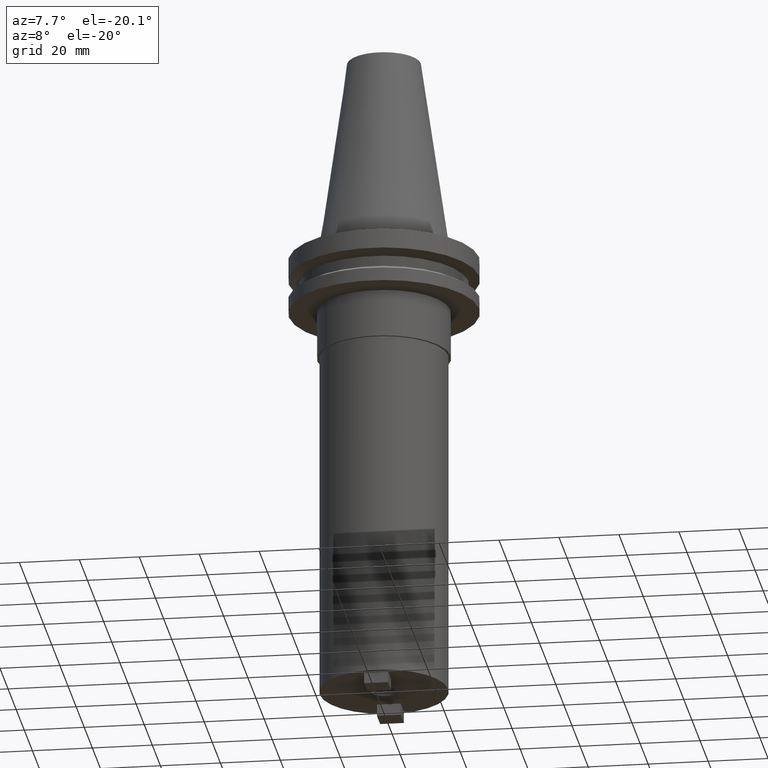
[diagram: clean part render]
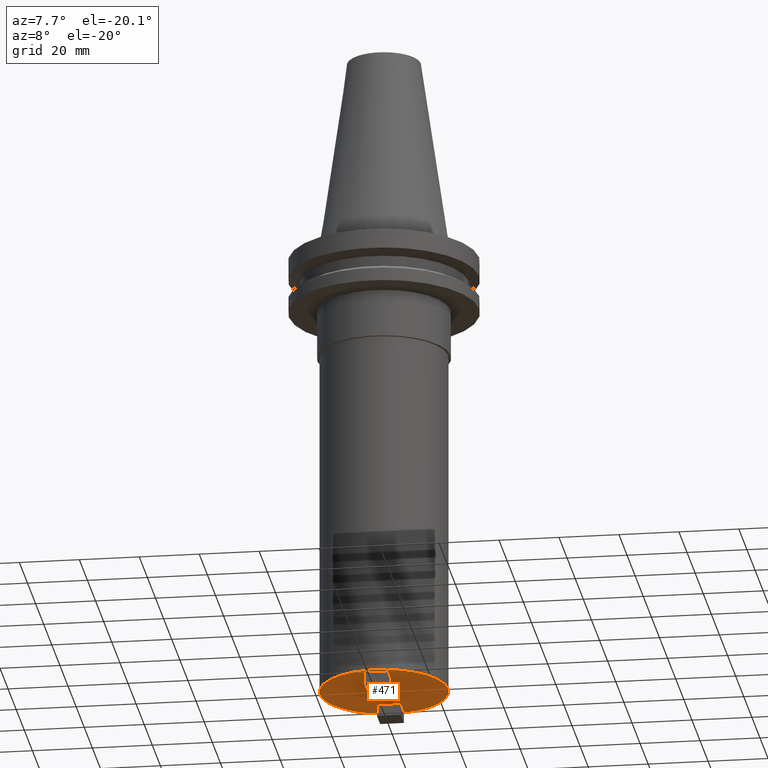
[diagram: same view with one face highlighted and labeled with its STEP entity id]
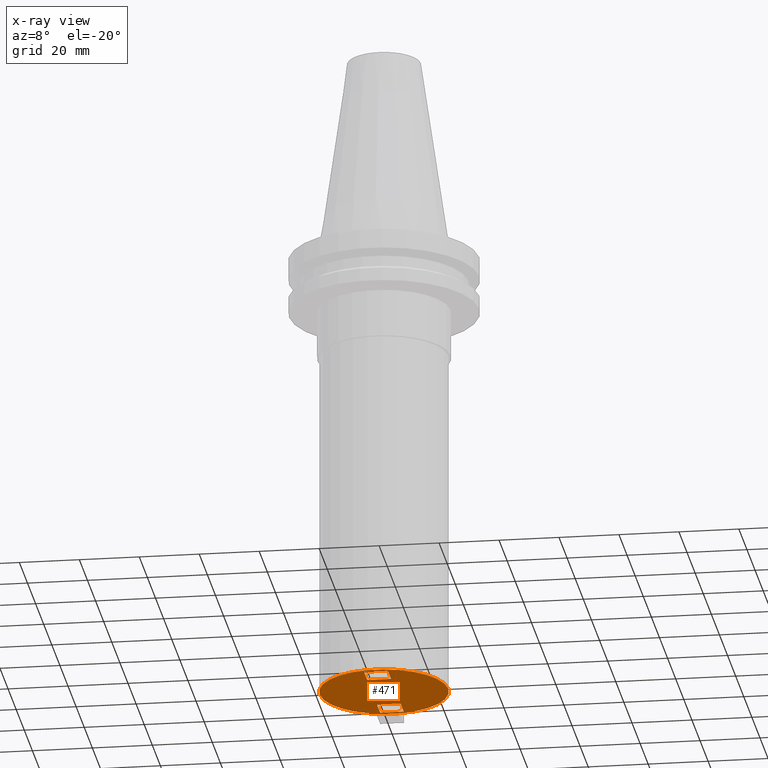
[diagram: x-ray of the same camera — body ghosted, the highlighted face saturated]
A machine part, auxiliary view. The second image highlights one B-rep face of the part: STEP entity #471.
The next image is the same camera in x-ray: the body ghosted, the highlighted face saturated — about 0% of this face is hidden behind the body in this view.
In plain terms, the highlighted planar face has unit normal (0, -0, 1).
Its self-contained STEP definition (entity closure, byte-faithful):
#20 = VERTEX_POINT ( 'NONE', #212 ) ;
#22 = CARTESIAN_POINT ( 'NONE',  ( 3.964999999999997193, -11.91000000000000014, -152.4000000000000057 ) ) ;
#28 = CARTESIAN_POINT ( 'NONE',  ( 4.215000000000006075, 0.000000000000000000, -152.4000000000000057 ) ) ;
#35 = CARTESIAN_POINT ( 'NONE',  ( 21.44999999999999929, 0.000000000000000000, -152.4000000000000057 ) ) ;
#56 = ORIENTED_EDGE ( 'NONE', *, *, #1050, .F. ) ;
#57 = CIRCLE ( 'NONE', #352, 21.44999999999999929 ) ;
#71 = EDGE_CURVE ( 'NONE', #713, #922, #741, .T. ) ;
#90 = CARTESIAN_POINT ( 'NONE',  ( -3.965000000000004299, -11.90999999999999837, -152.4000000000000057 ) ) ;
#92 = VERTEX_POINT ( 'NONE', #28 ) ;
#97 = DIRECTION ( 'NONE',  ( -1.000000000000000000, 0.000000000000000000, 0.000000000000000000 ) ) ;
#119 = VECTOR ( 'NONE', #151, 1000.000000000000000 ) ;
#121 = CARTESIAN_POINT ( 'NONE',  ( 0.000000000000000000, 0.000000000000000000, -152.4000000000000057 ) ) ;
#131 = FACE_BOUND ( 'NONE', #300, .T. ) ;
#134 = EDGE_CURVE ( 'NONE', #922, #713, #57, .T. ) ;
#151 = DIRECTION ( 'NONE',  ( 0.000000000000000000, -1.000000000000000000, 0.000000000000000000 ) ) ;
#170 = ORIENTED_EDGE ( 'NONE', *, *, #134, .F. ) ;
#183 = DIRECTION ( 'NONE',  ( -0.000000000000000000, 1.000000000000000000, -0.000000000000000000 ) ) ;
#187 = EDGE_CURVE ( 'NONE', #987, #983, #976, .T. ) ;
#195 = LINE ( 'NONE', #90, #231 ) ;
#212 = CARTESIAN_POINT ( 'NONE',  ( -3.965000000000004299, 11.91000000000000192, -152.4000000000000057 ) ) ;
#231 = VECTOR ( 'NONE', #785, 1000.000000000000000 ) ;
#232 = ORIENTED_EDGE ( 'NONE', *, *, #877, .F. ) ;
#237 = FACE_BOUND ( 'NONE', #756, .T. ) ;
#258 = ORIENTED_EDGE ( 'NONE', *, *, #1083, .F. ) ;
#259 = ORIENTED_EDGE ( 'NONE', *, *, #455, .F. ) ;
#262 = AXIS2_PLACEMENT_3D ( 'NONE', #822, #651, #328 ) ;
#265 = CARTESIAN_POINT ( 'NONE',  ( 3.964999999999997193, -19.83999999999998920, -152.4000000000000057 ) ) ;
#275 = LINE ( 'NONE', #355, #551 ) ;
#278 = ORIENTED_EDGE ( 'NONE', *, *, #474, .T. ) ;
#284 = ORIENTED_EDGE ( 'NONE', *, *, #1081, .F. ) ;
#292 = DIRECTION ( 'NONE',  ( -0.000000000000000000, -0.000000000000000000, 1.000000000000000000 ) ) ;
#300 = EDGE_LOOP ( 'NONE', ( #450, #278 ) ) ;
#318 = FACE_BOUND ( 'NONE', #345, .T. ) ;
#328 = DIRECTION ( 'NONE',  ( 1.000000000000000000, 0.000000000000000000, 0.000000000000000000 ) ) ;
#345 = EDGE_LOOP ( 'NONE', ( #56, #259, #554, #258 ) ) ;
#352 = AXIS2_PLACEMENT_3D ( 'NONE', #1038, #292, #632 ) ;
#355 = CARTESIAN_POINT ( 'NONE',  ( -3.965000000000004299, 19.84000000000000341, -152.4000000000000057 ) ) ;
#365 = DIRECTION ( 'NONE',  ( -0.000000000000000000, -0.000000000000000000, 1.000000000000000000 ) ) ;
#394 = CARTESIAN_POINT ( 'NONE',  ( 3.964999999999997193, -19.83999999999999631, -152.4000000000000057 ) ) ;
#402 = CIRCLE ( 'NONE', #1007, 4.215000000000006075 ) ;
#412 = LINE ( 'NONE', #904, #119 ) ;
#413 = VERTEX_POINT ( 'NONE', #975 ) ;
#422 = CARTESIAN_POINT ( 'NONE',  ( -3.965000000000004299, -11.91000000000000014, -152.4000000000000057 ) ) ;
#429 = CARTESIAN_POINT ( 'NONE',  ( 3.964999999999997193, -11.90999999999999837, -152.4000000000000057 ) ) ;
#445 = AXIS2_PLACEMENT_3D ( 'NONE', #608, #365, #768 ) ;
#450 = ORIENTED_EDGE ( 'NONE', *, *, #988, .T. ) ;
#452 = DIRECTION ( 'NONE',  ( 1.000000000000000000, -0.000000000000000000, -0.000000000000000000 ) ) ;
#455 = EDGE_CURVE ( 'NONE', #983, #795, #560, .T. ) ;
#471 = ADVANCED_FACE ( 'NONE', ( #237, #805, #131, #318 ), #810, .F. ) ;
#474 = EDGE_CURVE ( 'NONE', #775, #92, #402, .T. ) ;
#478 = DIRECTION ( 'NONE',  ( -0.000000000000000000, -0.000000000000000000, 1.000000000000000000 ) ) ;
#533 = LINE ( 'NONE', #848, #1014 ) ;
#548 = CARTESIAN_POINT ( 'NONE',  ( 3.964999999999995417, 19.84000000000000341, -152.4000000000000057 ) ) ;
#551 = VECTOR ( 'NONE', #183, 1000.000000000000000 ) ;
#554 = ORIENTED_EDGE ( 'NONE', *, *, #187, .F. ) ;
#560 = LINE ( 'NONE', #394, #1045 ) ;
#575 = DIRECTION ( 'NONE',  ( 0.000000000000000000, -1.000000000000000000, 0.000000000000000000 ) ) ;
#601 = LINE ( 'NONE', #1080, #996 ) ;
#605 = ORIENTED_EDGE ( 'NONE', *, *, #913, .F. ) ;
#608 = CARTESIAN_POINT ( 'NONE',  ( 0.000000000000000000, 0.000000000000000000, -152.4000000000000057 ) ) ;
#621 = CARTESIAN_POINT ( 'NONE',  ( -4.215000000000006075, 5.161886258406101444E-16, -152.4000000000000057 ) ) ;
#632 = DIRECTION ( 'NONE',  ( 1.000000000000000000, 0.000000000000000000, 0.000000000000000000 ) ) ;
#651 = DIRECTION ( 'NONE',  ( 0.000000000000000000, -0.000000000000000000, 1.000000000000000000 ) ) ;
#666 = DIRECTION ( 'NONE',  ( 1.000000000000000000, -0.000000000000000000, -0.000000000000000000 ) ) ;
#678 = CARTESIAN_POINT ( 'NONE',  ( -21.44999999999999929, 2.626867384171072557E-15, -152.4000000000000057 ) ) ;
#685 = EDGE_LOOP ( 'NONE', ( #727, #170 ) ) ;
#690 = CARTESIAN_POINT ( 'NONE',  ( 3.964999999999995417, 11.91000000000000192, -152.4000000000000057 ) ) ;
#696 = LINE ( 'NONE', #429, #918 ) ;
#708 = AXIS2_PLACEMENT_3D ( 'NONE', #121, #786, #938 ) ;
#713 = VERTEX_POINT ( 'NONE', #35 ) ;
#727 = ORIENTED_EDGE ( 'NONE', *, *, #71, .F. ) ;
#731 = VERTEX_POINT ( 'NONE', #548 ) ;
#741 = CIRCLE ( 'NONE', #708, 21.44999999999999929 ) ;
#745 = CARTESIAN_POINT ( 'NONE',  ( 0.000000000000000000, 0.000000000000000000, -152.4000000000000057 ) ) ;
#756 = EDGE_LOOP ( 'NONE', ( #284, #831, #605, #232 ) ) ;
#768 = DIRECTION ( 'NONE',  ( 1.000000000000000000, 0.000000000000000000, 0.000000000000000000 ) ) ;
#775 = VERTEX_POINT ( 'NONE', #621 ) ;
#785 = DIRECTION ( 'NONE',  ( -0.000000000000000000, 1.000000000000000000, -0.000000000000000000 ) ) ;
#786 = DIRECTION ( 'NONE',  ( -0.000000000000000000, -0.000000000000000000, 1.000000000000000000 ) ) ;
#795 = VERTEX_POINT ( 'NONE', #951 ) ;
#805 = FACE_OUTER_BOUND ( 'NONE', #685, .T. ) ;
#810 = PLANE ( 'NONE',  #262 ) ;
#822 = CARTESIAN_POINT ( 'NONE',  ( 0.000000000000000000, 21.44999999999999929, -152.4000000000000057 ) ) ;
#824 = CARTESIAN_POINT ( 'NONE',  ( 3.964999999999997193, -11.90999999999999837, -152.4000000000000057 ) ) ;
#831 = ORIENTED_EDGE ( 'NONE', *, *, #1075, .F. ) ;
#835 = VECTOR ( 'NONE', #575, 1000.000000000000000 ) ;
#848 = CARTESIAN_POINT ( 'NONE',  ( 3.964999999999995417, 11.91000000000000192, -152.4000000000000057 ) ) ;
#877 = EDGE_CURVE ( 'NONE', #413, #731, #601, .T. ) ;
#904 = CARTESIAN_POINT ( 'NONE',  ( 3.964999999999995417, 19.84000000000000341, -152.4000000000000057 ) ) ;
#907 = DIRECTION ( 'NONE',  ( 1.000000000000000000, 0.000000000000000000, 0.000000000000000000 ) ) ;
#913 = EDGE_CURVE ( 'NONE', #731, #1071, #412, .T. ) ;
#918 = VECTOR ( 'NONE', #452, 1000.000000000000000 ) ;
#922 = VERTEX_POINT ( 'NONE', #678 ) ;
#938 = DIRECTION ( 'NONE',  ( 1.000000000000000000, 0.000000000000000000, 0.000000000000000000 ) ) ;
#951 = CARTESIAN_POINT ( 'NONE',  ( -3.965000000000004299, -19.84000000000000341, -152.4000000000000057 ) ) ;
#961 = VERTEX_POINT ( 'NONE', #422 ) ;
#970 = DIRECTION ( 'NONE',  ( -1.000000000000000000, -8.750181467726642358E-16, 0.000000000000000000 ) ) ;
#975 = CARTESIAN_POINT ( 'NONE',  ( -3.965000000000004299, 19.84000000000000341, -152.4000000000000057 ) ) ;
#976 = LINE ( 'NONE', #824, #835 ) ;
#983 = VERTEX_POINT ( 'NONE', #265 ) ;
#987 = VERTEX_POINT ( 'NONE', #22 ) ;
#988 = EDGE_CURVE ( 'NONE', #92, #775, #1048, .T. ) ;
#996 = VECTOR ( 'NONE', #666, 1000.000000000000000 ) ;
#1007 = AXIS2_PLACEMENT_3D ( 'NONE', #745, #478, #907 ) ;
#1014 = VECTOR ( 'NONE', #97, 1000.000000000000000 ) ;
#1038 = CARTESIAN_POINT ( 'NONE',  ( 0.000000000000000000, 0.000000000000000000, -152.4000000000000057 ) ) ;
#1045 = VECTOR ( 'NONE', #970, 1000.000000000000000 ) ;
#1048 = CIRCLE ( 'NONE', #445, 4.215000000000006075 ) ;
#1050 = EDGE_CURVE ( 'NONE', #795, #961, #195, .T. ) ;
#1071 = VERTEX_POINT ( 'NONE', #690 ) ;
#1075 = EDGE_CURVE ( 'NONE', #1071, #20, #533, .T. ) ;
#1080 = CARTESIAN_POINT ( 'NONE',  ( 3.964999999999995417, 19.84000000000000341, -152.4000000000000057 ) ) ;
#1081 = EDGE_CURVE ( 'NONE', #20, #413, #275, .T. ) ;
#1083 = EDGE_CURVE ( 'NONE', #961, #987, #696, .T. ) ;